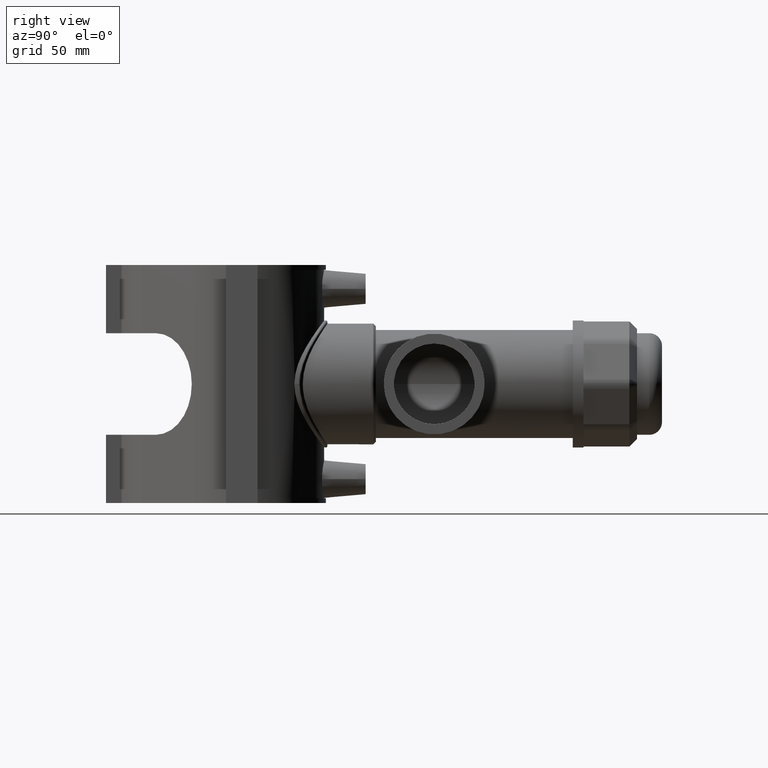
[diagram: clean part render]
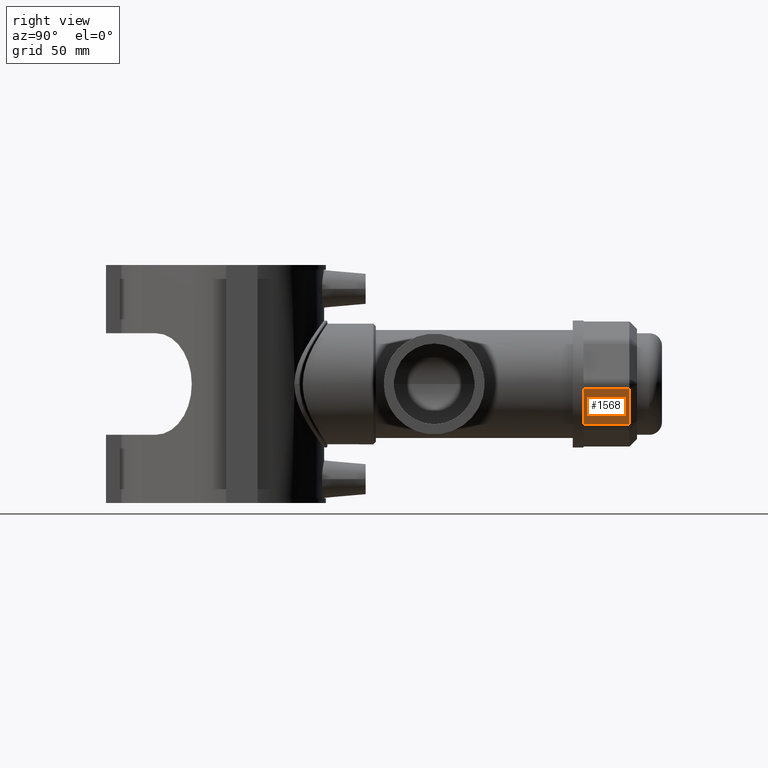
[diagram: same view with one face highlighted and labeled with its STEP entity id]
A machine part, right view. The second image highlights one B-rep face of the part: STEP entity #1568.
In plain terms, the highlighted planar face has unit normal (0.9239, 0, -0.3827).
Its self-contained STEP definition (entity closure, byte-faithful):
#40=LINE('',#2609,#175);
#78=LINE('',#2734,#213);
#79=LINE('',#2738,#214);
#80=LINE('',#2739,#215);
#175=VECTOR('',#1856,18.8899653530997);
#213=VECTOR('',#1994,22.7699999999999);
#214=VECTOR('',#1999,22.7699999999999);
#215=VECTOR('',#2000,18.8899653530997);
#412=FACE_OUTER_BOUND('',#525,.T.);
#525=EDGE_LOOP('',(#1188,#1189,#1190,#1191));
#697=VERTEX_POINT('',#2601);
#699=VERTEX_POINT('',#2607);
#736=VERTEX_POINT('',#2733);
#737=VERTEX_POINT('',#2737);
#849=EDGE_CURVE('',#699,#697,#40,.T.);
#909=EDGE_CURVE('',#697,#736,#78,.T.);
#911=EDGE_CURVE('',#737,#699,#79,.T.);
#912=EDGE_CURVE('',#736,#737,#80,.T.);
#1188=ORIENTED_EDGE('',*,*,#849,.F.);
#1189=ORIENTED_EDGE('',*,*,#911,.F.);
#1190=ORIENTED_EDGE('',*,*,#912,.F.);
#1191=ORIENTED_EDGE('',*,*,#909,.F.);
#1490=PLANE('',#1704);
#1568=ADVANCED_FACE('',(#412),#1490,.T.);
#1704=AXIS2_PLACEMENT_3D('',#2736,#1997,#1998);
#1856=DIRECTION('',(-0.382683432365089,2.82856528071925E-16,-0.923879532511287));
#1994=DIRECTION('',(0.,-1.,-3.34530478229802E-16));
#1997=DIRECTION('center_axis',(0.923879532511287,1.28019271639715E-16,-0.382683432365089));
#1998=DIRECTION('ref_axis',(0.382683432365089,0.,0.923879532511287));
#1999=DIRECTION('',(2.27753888853756E-32,1.,3.34530478229802E-16));
#2000=DIRECTION('',(0.382683432365089,-2.82856528071925E-16,0.923879532511287));
#2601=CARTESIAN_POINT('',(23.2724934143973,192.33,-19.8629579834761));
#2607=CARTESIAN_POINT('',(30.501370192979,192.33,-2.4109056239));
#2609=CARTESIAN_POINT('',(29.0351704270075,192.33,-5.95062498405687));
#2733=CARTESIAN_POINT('',(23.2724934143973,169.56,-19.8629579834761));
#2734=CARTESIAN_POINT('',(23.2724934143973,196.11,-19.8629579834761));
#2736=CARTESIAN_POINT('Origin',(22.2738636073763,196.11,-22.2738636073762));
#2737=CARTESIAN_POINT('',(30.501370192979,169.56,-2.41090562390001));
#2738=CARTESIAN_POINT('',(30.501370192979,196.11,-2.4109056239));
#2739=CARTESIAN_POINT('',(29.3692783811181,169.56,-5.14401702994624));